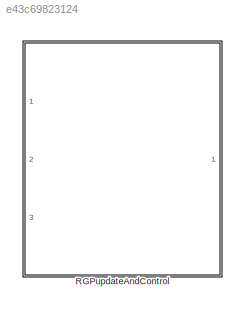
MODEL slx_e43c69823124
KIND library
CONFIG AbsTol = auto
CONFIG EnableMultiTasking = off
CONFIG FixedStep = auto
CONFIG MaxStep = auto
CONFIG MinStep = auto
CONFIG RelTol = 1e-3
CONFIG SampleTimeConstraint = Unconstrained
CONFIG SolverName = VariableStepAuto
CONFIG StartTime = 0.0
CONFIG StopTime = 10.0
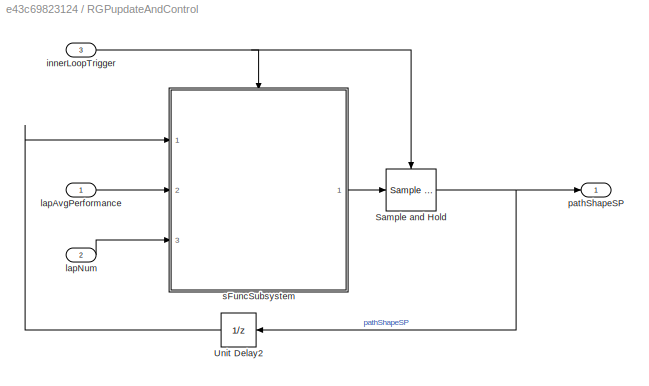
BLOCK [SubSystem] RGPupdateAndControl
  Ports = [3, 1]
  RequestExecContextInheritance = off
  TreatAsAtomicUnit = on
BLOCK [Reference] RGPupdateAndControl/Sample and Hold  REF=dspsigops/Sample
and Hold
  Ports = [1, 1, 0, 1]
  SourceBlock = dspsigops/Sample\nand Hold
  SourceProductBaseCode = DS
  SourceType = Sample and Hold
BLOCK [UnitDelay] RGPupdateAndControl/Unit Delay2
  HasFrameUpgradeWarning = on
  InitialCondition = hiLvlCtrl.initPathShape
  NameLocation = top
  SampleTime = -1
BLOCK [Inport] RGPupdateAndControl/innerLoopTrigger
  Port = 3
BLOCK [Inport] RGPupdateAndControl/lapAvgPerformance
BLOCK [Inport] RGPupdateAndControl/lapNum
  Port = 2
BLOCK [Outport] RGPupdateAndControl/pathShapeSP
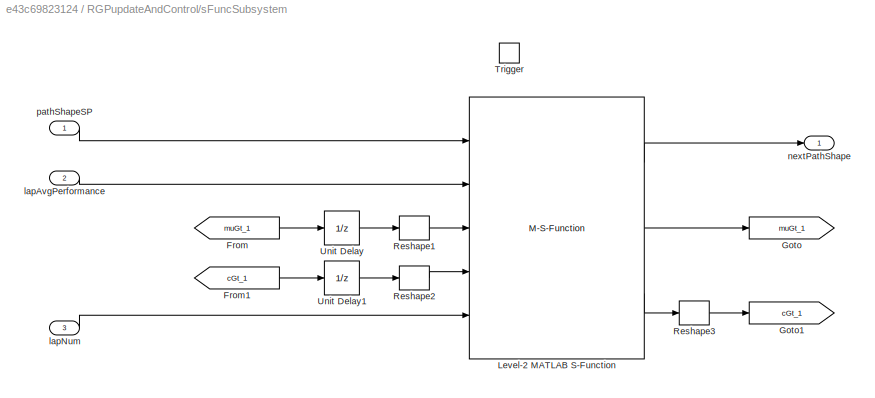
BLOCK [SubSystem] RGPupdateAndControl/sFuncSubsystem
  Ports = [3, 1, 0, 1]
  RequestExecContextInheritance = off
BLOCK [From] RGPupdateAndControl/sFuncSubsystem/From
  GotoTag = muGt_1
BLOCK [From] RGPupdateAndControl/sFuncSubsystem/From1
  GotoTag = cGt_1
BLOCK [Goto] RGPupdateAndControl/sFuncSubsystem/Goto
  GotoTag = muGt_1
BLOCK [Goto] RGPupdateAndControl/sFuncSubsystem/Goto1
  GotoTag = cGt_1
BLOCK [M-S-Function] RGPupdateAndControl/sFuncSubsystem/Level-2 MATLAB S-Function
  FunctionName = optimizePathShapeRGP_Lvl2sFunc
  Parameters = rgp
  Ports = [5, 3]
BLOCK [Reshape] RGPupdateAndControl/sFuncSubsystem/Reshape1
  OutputDimensionality = Column vector (2-D)
  Ports = [1, 1]
BLOCK [Reshape] RGPupdateAndControl/sFuncSubsystem/Reshape2
  OutputDimensionality = Column vector (2-D)
  Ports = [1, 1]
BLOCK [Reshape] RGPupdateAndControl/sFuncSubsystem/Reshape3
  OutputDimensionality = Customize
  OutputDimensions = length(rgp.meanFnVector)*[1,1]
  Ports = [1, 1]
BLOCK [TriggerPort] RGPupdateAndControl/sFuncSubsystem/Trigger
  Ports = []
  StatesWhenEnabling = held
  VariantControl = Variant
BLOCK [UnitDelay] RGPupdateAndControl/sFuncSubsystem/Unit Delay
  HasFrameUpgradeWarning = on
  InitialCondition = rgp.meanFnVector
  SampleTime = -1
BLOCK [UnitDelay] RGPupdateAndControl/sFuncSubsystem/Unit Delay1
  HasFrameUpgradeWarning = on
  InitialCondition = rgp.spatialCovMat
  SampleTime = -1
BLOCK [Inport] RGPupdateAndControl/sFuncSubsystem/lapAvgPerformance
  Port = 2
BLOCK [Inport] RGPupdateAndControl/sFuncSubsystem/lapNum
  Port = 3
BLOCK [Outport] RGPupdateAndControl/sFuncSubsystem/nextPathShape
BLOCK [Inport] RGPupdateAndControl/sFuncSubsystem/pathShapeSP
NET RGPupdateAndControl/Sample and Hold:1 -> RGPupdateAndControl/Unit Delay2:1, RGPupdateAndControl/pathShapeSP:1
LINE RGPupdateAndControl/Unit Delay2:1 -> RGPupdateAndControl/sFuncSubsystem:1
NET RGPupdateAndControl/innerLoopTrigger:1 -> RGPupdateAndControl/Sample and Hold:trigger, RGPupdateAndControl/sFuncSubsystem:trigger
LINE RGPupdateAndControl/lapAvgPerformance:1 -> RGPupdateAndControl/sFuncSubsystem:2
LINE RGPupdateAndControl/lapNum:1 -> RGPupdateAndControl/sFuncSubsystem:3
LINE RGPupdateAndControl/sFuncSubsystem/From1:1 -> RGPupdateAndControl/sFuncSubsystem/Unit Delay1:1
LINE RGPupdateAndControl/sFuncSubsystem/From:1 -> RGPupdateAndControl/sFuncSubsystem/Unit Delay:1
LINE RGPupdateAndControl/sFuncSubsystem/Level-2 MATLAB S-Function:1 -> RGPupdateAndControl/sFuncSubsystem/nextPathShape:1
LINE RGPupdateAndControl/sFuncSubsystem/Level-2 MATLAB S-Function:2 -> RGPupdateAndControl/sFuncSubsystem/Goto:1
LINE RGPupdateAndControl/sFuncSubsystem/Level-2 MATLAB S-Function:3 -> RGPupdateAndControl/sFuncSubsystem/Reshape3:1
LINE RGPupdateAndControl/sFuncSubsystem/Reshape1:1 -> RGPupdateAndControl/sFuncSubsystem/Level-2 MATLAB S-Function:3
LINE RGPupdateAndControl/sFuncSubsystem/Reshape2:1 -> RGPupdateAndControl/sFuncSubsystem/Level-2 MATLAB S-Function:4
LINE RGPupdateAndControl/sFuncSubsystem/Reshape3:1 -> RGPupdateAndControl/sFuncSubsystem/Goto1:1
LINE RGPupdateAndControl/sFuncSubsystem/Unit Delay1:1 -> RGPupdateAndControl/sFuncSubsystem/Reshape2:1
LINE RGPupdateAndControl/sFuncSubsystem/Unit Delay:1 -> RGPupdateAndControl/sFuncSubsystem/Reshape1:1
LINE RGPupdateAndControl/sFuncSubsystem/lapAvgPerformance:1 -> RGPupdateAndControl/sFuncSubsystem/Level-2 MATLAB S-Function:2
LINE RGPupdateAndControl/sFuncSubsystem/lapNum:1 -> RGPupdateAndControl/sFuncSubsystem/Level-2 MATLAB S-Function:5
LINE RGPupdateAndControl/sFuncSubsystem/pathShapeSP:1 -> RGPupdateAndControl/sFuncSubsystem/Level-2 MATLAB S-Function:1
LINE RGPupdateAndControl/sFuncSubsystem:1 -> RGPupdateAndControl/Sample and Hold:1
note: NET lines group one-source signal fan-out (src -> all destinations, sorted); 1:1 wires keep LINE
